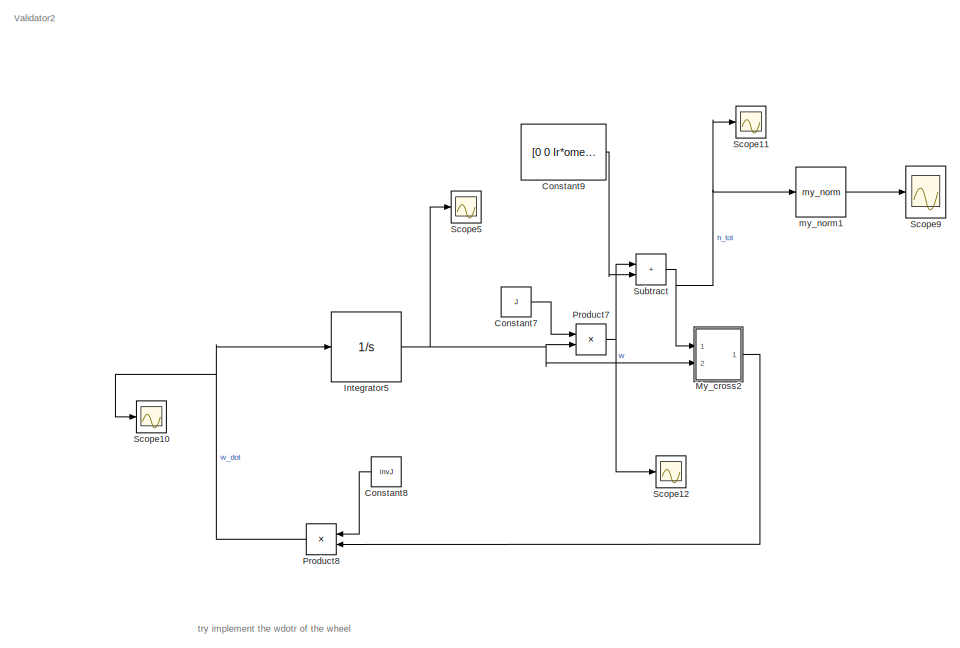
[diagram: root canvas - part 1/5, top right region]
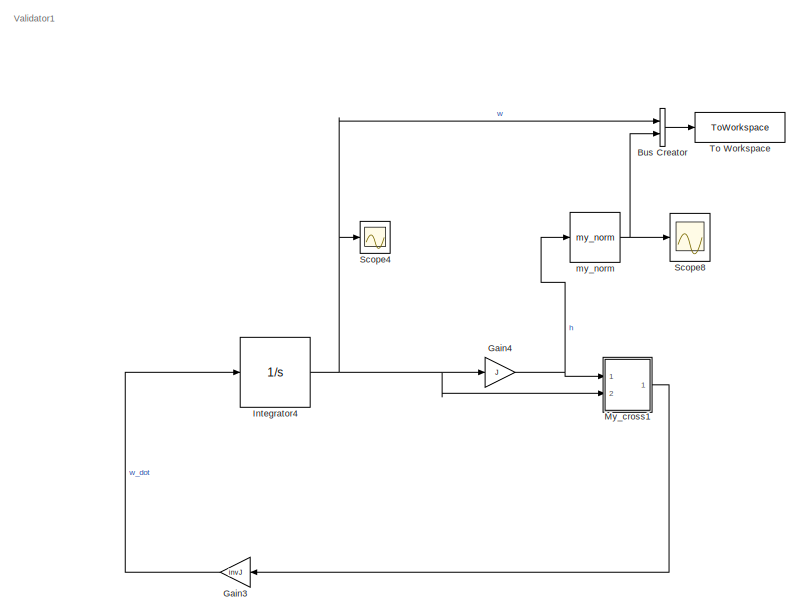
[diagram: root canvas - part 2/5, top center region]
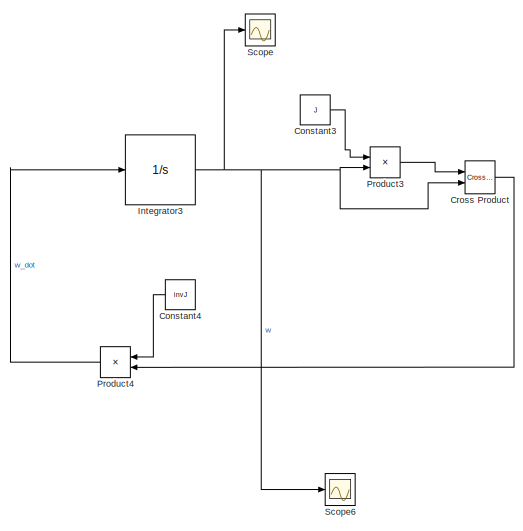
[diagram: root canvas - part 3/5, top left region]
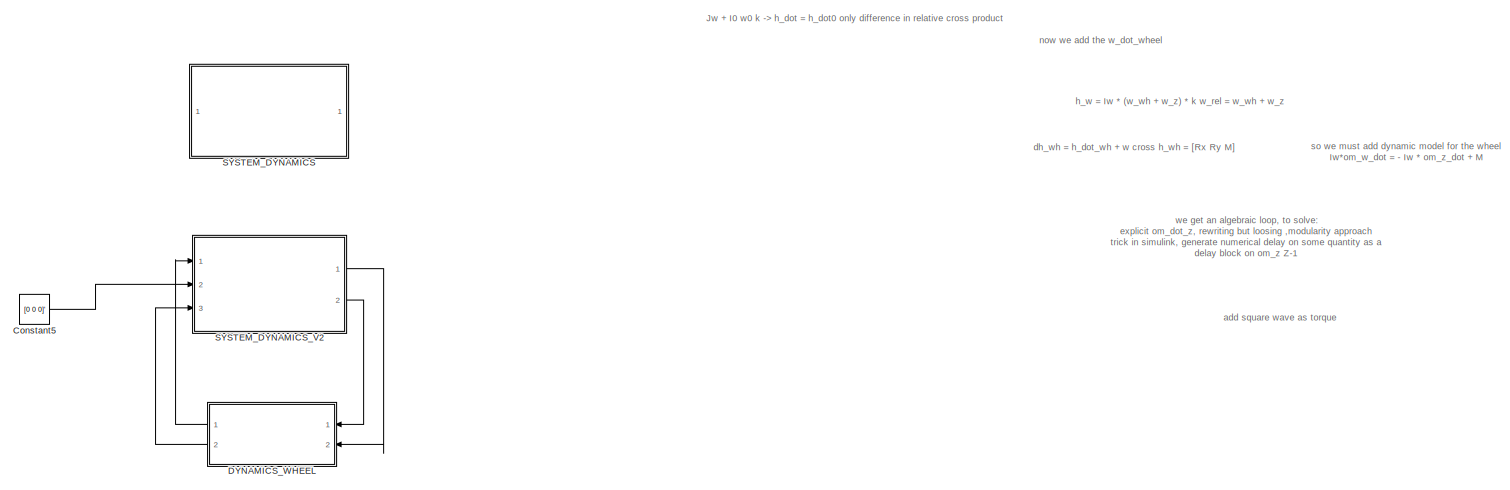
[diagram: root canvas - part 4/5, middle right region]
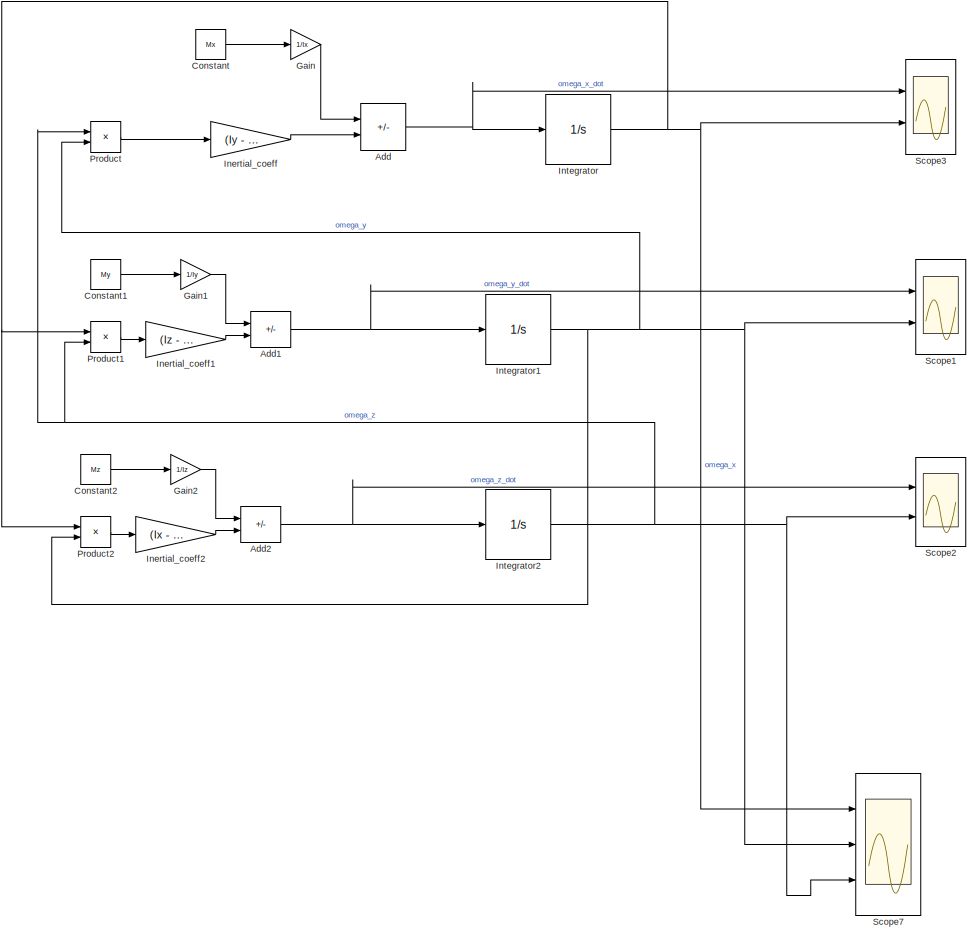
[diagram: root canvas - part 5/5, bottom left region]
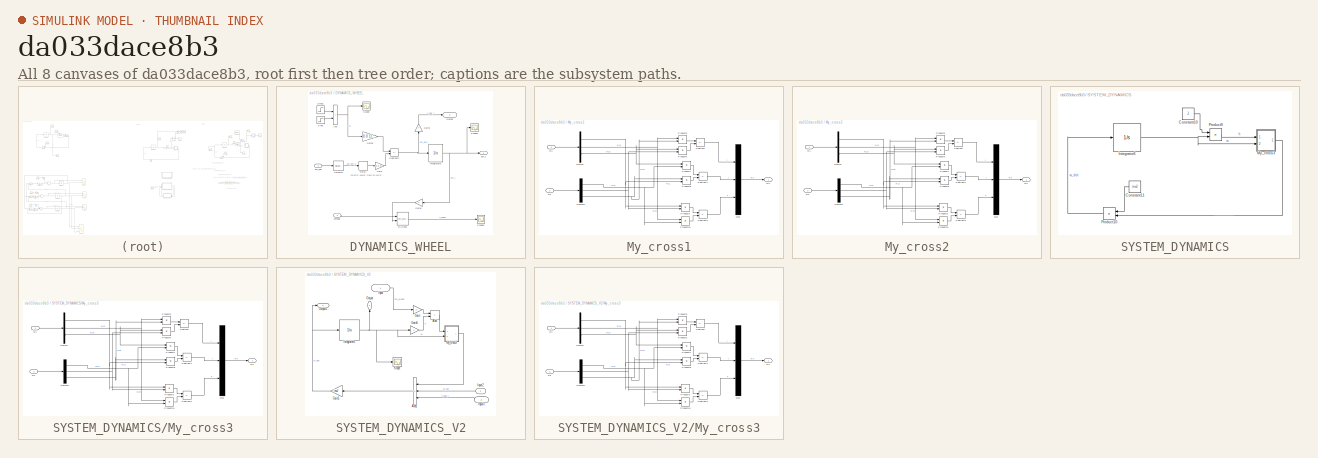
[diagram: thumbnail index - all 8 canvases of the model, root first then tree order]
MODEL slx_da033dace8b3
KIND model
CONFIG AbsTol = auto
CONFIG EnableMultiTasking = off
CONFIG FixedStep = 0.01
CONFIG MaxStep = auto
CONFIG MinStep = auto
CONFIG RelTol = 1e-3
CONFIG SampleTimeConstraint = Unconstrained
CONFIG SolverName = ode8
CONFIG StartTime = 0.0
CONFIG StopTime = 5000
BLOCK [Sum] Add
  Commented = on
  IconShape = rectangular
  Inputs = --
  Ports = [2, 1]
BLOCK [Sum] Add1
  Commented = on
  IconShape = rectangular
  Inputs = --
  Ports = [2, 1]
BLOCK [Sum] Add2
  Commented = on
  IconShape = rectangular
  Inputs = --
  Ports = [2, 1]
BLOCK [BusCreator] Bus Creator
  DisplayOption = bar
  InheritFromInputs = on
  Inputs = 2
  Ports = [2, 1]
BLOCK [Constant] Constant
  Commented = on
  Value = Mx
BLOCK [Constant] Constant1
  Commented = on
  Value = My
BLOCK [Constant] Constant2
  Commented = on
  Value = Mz
BLOCK [Constant] Constant3
  Commented = on
  Value = J
BLOCK [Constant] Constant4
  Commented = on
  Value = invJ
BLOCK [Constant] Constant5
  Value = [0 0 0]'
BLOCK [Constant] Constant7
  Value = J
BLOCK [Constant] Constant8
  Value = invJ
BLOCK [Constant] Constant9
  Value = [0 0 Ir*omegar]'
BLOCK [Reference] Cross Product  REF=vrlib/Utilities/Cross Product
  Commented = on
  Ports = [2, 1]
  SourceBlock = vrlib/Utilities/Cross Product
  SourceProductBaseCode = SL
  SourceType = Cross Product
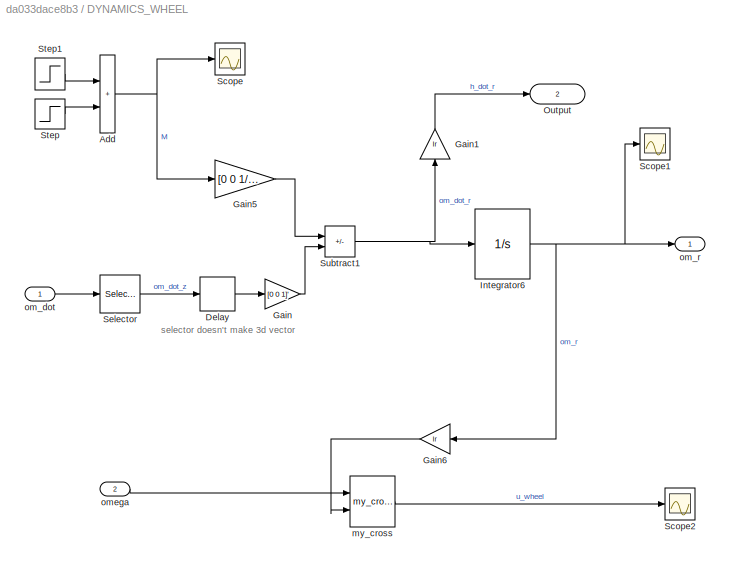
BLOCK [SubSystem] DYNAMICS_WHEEL
  Ports = [2, 2]
  RequestExecContextInheritance = off
BLOCK [Sum] DYNAMICS_WHEEL/Add
  IconShape = rectangular
  Ports = [2, 1]
BLOCK [Delay] DYNAMICS_WHEEL/Delay
  DelayLength = 1
  InputPortMap = u0
  Ports = [1, 1]
BLOCK [Gain] DYNAMICS_WHEEL/Gain
  Gain = [0 0 1]'
BLOCK [Gain] DYNAMICS_WHEEL/Gain1
  Gain = Ir
  NameLocation = right
BLOCK [Gain] DYNAMICS_WHEEL/Gain5
  Gain = [0 0 1/Ir]'
BLOCK [Gain] DYNAMICS_WHEEL/Gain6
  Gain = Ir
BLOCK [Integrator] DYNAMICS_WHEEL/Integrator6
  InitialCondition = [0 0 0]'
  Ports = [1, 1]
BLOCK [Outport] DYNAMICS_WHEEL/Output
  IconDisplay = Signal name
  Port = 2
BLOCK [Scope] DYNAMICS_WHEEL/Scope
  Floating = off
  NumInputPorts = 1
  Ports = [1]
  ScopeSpecificationString = Simulink.scopes.TimeScopeBlockCfg('CurrentConfiguration', extmgr.ConfigurationSet(extmgr.Configuration('Core','General UI',true),extmgr.Configuration('Core','Source UI',true),extmgr.Configuration('Sources','WiredSimulink',true,'DataLoggingVariableName','ScopeData2'),extmgr.Configuration('Visuals','Time Domain',true,'SerializedDisplays',{struct('MinYLimReal','-0.00005','MaxYLimReal','0.00045','YLab...<+1388ch>
BLOCK [Scope] DYNAMICS_WHEEL/Scope1
  Floating = off
  NumInputPorts = 1
  Ports = [1]
  ScopeSpecificationString = Simulink.scopes.TimeScopeBlockCfg('CurrentConfiguration', extmgr.ConfigurationSet(extmgr.Configuration('Core','General UI',true),extmgr.Configuration('Core','Source UI',true),extmgr.Configuration('Sources','WiredSimulink',true,'DataLoggingVariableName','ScopeData3'),extmgr.Configuration('Visuals','Time Domain',true,'SerializedDisplays',{struct('MinYLimReal','-0.05551','MaxYLimReal','0.49956','YLab...<+1451ch>
BLOCK [Scope] DYNAMICS_WHEEL/Scope2
  Floating = off
  NumInputPorts = 1
  Ports = [1]
  ScopeSpecificationString = Simulink.scopes.TimeScopeBlockCfg('CurrentConfiguration', extmgr.ConfigurationSet(extmgr.Configuration('Core','General UI',true),extmgr.Configuration('Core','Source UI',true),extmgr.Configuration('Sources','WiredSimulink',true,'DataLoggingVariableName','ScopeData1'),extmgr.Configuration('Visuals','Time Domain',true,'SerializedDisplays',{struct('MinYLimReal','-0.0000004','MaxYLimReal','0.0000004','...<+1479ch>
BLOCK [Selector] DYNAMICS_WHEEL/Selector
  IndexOptions = Index vector (dialog)
  Indices = 3
  InputPortWidth = 3
  OutputSizes = 1
  Ports = [1, 1]
BLOCK [Step] DYNAMICS_WHEEL/Step
  After = -T_w
  SampleTime = 0
  Time = 255
BLOCK [Step] DYNAMICS_WHEEL/Step1
  After = T_w
  SampleTime = 0
  Time = 250
BLOCK [Sum] DYNAMICS_WHEEL/Subtract1
  IconShape = rectangular
  Inputs = +-
  Ports = [2, 1]
BLOCK [Reference] DYNAMICS_WHEEL/my_cross  REF=my_math_ops/my_cross  (lib defined in slx_67cfba16120e)
  Ports = [2, 1]
  SourceBlock = my_math_ops/my_cross
  SourceType = SubSystem
BLOCK [Inport] DYNAMICS_WHEEL/om_dot
BLOCK [Outport] DYNAMICS_WHEEL/om_r
BLOCK [Inport] DYNAMICS_WHEEL/omega
  Port = 2
BLOCK [Gain] Gain
  Commented = on
  Gain = 1/Ix
BLOCK [Gain] Gain1
  Commented = on
  Gain = 1/Iy
BLOCK [Gain] Gain2
  Commented = on
  Gain = 1/Iz
BLOCK [Gain] Gain3
  Gain = invJ
  Multiplication = Matrix(K*u)
BLOCK [Gain] Gain4
  Gain = J
  Multiplication = Matrix(K*u)
BLOCK [Gain] Inertial_coeff
  Commented = on
  Gain = (Iy - Iz) / Ix
BLOCK [Gain] Inertial_coeff1
  Commented = on
  Gain = (Iz - Ix) / Iy
BLOCK [Gain] Inertial_coeff2
  Commented = on
  Gain = (Ix - Iy) / Iz
BLOCK [Integrator] Integrator
  Commented = on
  InitialCondition = omegax0
  Ports = [1, 1]
BLOCK [Integrator] Integrator1
  Commented = on
  InitialCondition = omegay0
  Ports = [1, 1]
BLOCK [Integrator] Integrator2
  Commented = on
  InitialCondition = omegaz0
  Ports = [1, 1]
BLOCK [Integrator] Integrator3
  Commented = on
  InitialCondition = omega0
  Ports = [1, 1]
BLOCK [Integrator] Integrator4
  InitialCondition = omega0
  Ports = [1, 1]
BLOCK [Integrator] Integrator5
  InitialCondition = omega0
  Ports = [1, 1]
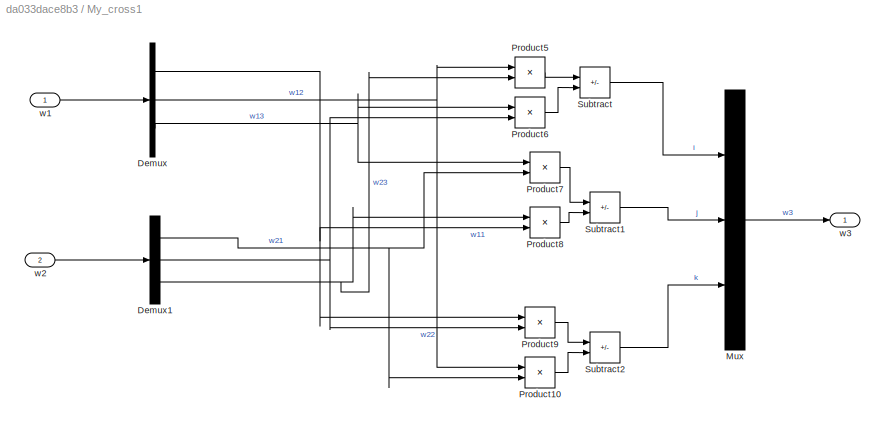
BLOCK [SubSystem] My_cross1
  Ports = [2, 1]
  RequestExecContextInheritance = off
BLOCK [Demux] My_cross1/Demux
  Outputs = 3
  Ports = [1, 3]
BLOCK [Demux] My_cross1/Demux1
  Outputs = 3
  Ports = [1, 3]
BLOCK [Mux] My_cross1/Mux
  DisplayOption = bar
  Inputs = 3
  Ports = [3, 1]
BLOCK [Product] My_cross1/Product10
  Ports = [2, 1]
BLOCK [Product] My_cross1/Product5
  Ports = [2, 1]
BLOCK [Product] My_cross1/Product6
  Ports = [2, 1]
BLOCK [Product] My_cross1/Product7
  Ports = [2, 1]
BLOCK [Product] My_cross1/Product8
  Ports = [2, 1]
BLOCK [Product] My_cross1/Product9
  Ports = [2, 1]
BLOCK [Sum] My_cross1/Subtract
  IconShape = rectangular
  Inputs = +-
  Ports = [2, 1]
BLOCK [Sum] My_cross1/Subtract1
  IconShape = rectangular
  Inputs = +-
  Ports = [2, 1]
BLOCK [Sum] My_cross1/Subtract2
  IconShape = rectangular
  Inputs = +-
  Ports = [2, 1]
BLOCK [Inport] My_cross1/w1
BLOCK [Inport] My_cross1/w2
  Port = 2
BLOCK [Outport] My_cross1/w3
BLOCK [SubSystem] My_cross2
  Ports = [2, 1]
  RequestExecContextInheritance = off
BLOCK [Demux] My_cross2/Demux
  Outputs = 3
  Ports = [1, 3]
BLOCK [Demux] My_cross2/Demux1
  Outputs = 3
  Ports = [1, 3]
BLOCK [Mux] My_cross2/Mux
  DisplayOption = bar
  Inputs = 3
  Ports = [3, 1]
BLOCK [Product] My_cross2/Product10
  Ports = [2, 1]
BLOCK [Product] My_cross2/Product5
  Ports = [2, 1]
BLOCK [Product] My_cross2/Product6
  Ports = [2, 1]
BLOCK [Product] My_cross2/Product7
  Ports = [2, 1]
BLOCK [Product] My_cross2/Product8
  Ports = [2, 1]
BLOCK [Product] My_cross2/Product9
  Ports = [2, 1]
BLOCK [Sum] My_cross2/Subtract
  IconShape = rectangular
  Inputs = +-
  Ports = [2, 1]
BLOCK [Sum] My_cross2/Subtract1
  IconShape = rectangular
  Inputs = +-
  Ports = [2, 1]
BLOCK [Sum] My_cross2/Subtract2
  IconShape = rectangular
  Inputs = +-
  Ports = [2, 1]
BLOCK [Inport] My_cross2/w1
BLOCK [Inport] My_cross2/w2
  Port = 2
BLOCK [Outport] My_cross2/w3
BLOCK [Product] Product
  Commented = on
  Ports = [2, 1]
BLOCK [Product] Product1
  Commented = on
  Ports = [2, 1]
BLOCK [Product] Product2
  Commented = on
  Ports = [2, 1]
BLOCK [Product] Product3
  Commented = on
  Multiplication = Matrix(*)
  Ports = [2, 1]
BLOCK [Product] Product4
  Commented = on
  Multiplication = Matrix(*)
  Ports = [2, 1]
BLOCK [Product] Product7
  Multiplication = Matrix(*)
  Ports = [2, 1]
BLOCK [Product] Product8
  Multiplication = Matrix(*)
  Ports = [2, 1]
BLOCK [SubSystem] SYSTEM_DYNAMICS
  Ports = []
  RequestExecContextInheritance = off
BLOCK [Constant] SYSTEM_DYNAMICS/Constant10
  Value = J
BLOCK [Constant] SYSTEM_DYNAMICS/Constant11
  Value = invJ
BLOCK [Integrator] SYSTEM_DYNAMICS/Integrator6
  InitialCondition = omega0
  Ports = [1, 1]
BLOCK [SubSystem] SYSTEM_DYNAMICS/My_cross3
  Ports = [2, 1]
  RequestExecContextInheritance = off
BLOCK [Demux] SYSTEM_DYNAMICS/My_cross3/Demux
  Outputs = 3
  Ports = [1, 3]
BLOCK [Demux] SYSTEM_DYNAMICS/My_cross3/Demux1
  Outputs = 3
  Ports = [1, 3]
BLOCK [Mux] SYSTEM_DYNAMICS/My_cross3/Mux
  DisplayOption = bar
  Inputs = 3
  Ports = [3, 1]
BLOCK [Product] SYSTEM_DYNAMICS/My_cross3/Product10
  Ports = [2, 1]
BLOCK [Product] SYSTEM_DYNAMICS/My_cross3/Product5
  Ports = [2, 1]
BLOCK [Product] SYSTEM_DYNAMICS/My_cross3/Product6
  Ports = [2, 1]
BLOCK [Product] SYSTEM_DYNAMICS/My_cross3/Product7
  Ports = [2, 1]
BLOCK [Product] SYSTEM_DYNAMICS/My_cross3/Product8
  Ports = [2, 1]
BLOCK [Product] SYSTEM_DYNAMICS/My_cross3/Product9
  Ports = [2, 1]
BLOCK [Sum] SYSTEM_DYNAMICS/My_cross3/Subtract
  IconShape = rectangular
  Inputs = +-
  Ports = [2, 1]
BLOCK [Sum] SYSTEM_DYNAMICS/My_cross3/Subtract1
  IconShape = rectangular
  Inputs = +-
  Ports = [2, 1]
BLOCK [Sum] SYSTEM_DYNAMICS/My_cross3/Subtract2
  IconShape = rectangular
  Inputs = +-
  Ports = [2, 1]
BLOCK [Inport] SYSTEM_DYNAMICS/My_cross3/w1
BLOCK [Inport] SYSTEM_DYNAMICS/My_cross3/w2
  Port = 2
BLOCK [Outport] SYSTEM_DYNAMICS/My_cross3/w3
BLOCK [Product] SYSTEM_DYNAMICS/Product10
  Multiplication = Matrix(*)
  Ports = [2, 1]
BLOCK [Product] SYSTEM_DYNAMICS/Product9
  Multiplication = Matrix(*)
  Ports = [2, 1]
BLOCK [SubSystem] SYSTEM_DYNAMICS_V2
  Ports = [3, 2]
  RequestExecContextInheritance = off
BLOCK [Sum] SYSTEM_DYNAMICS_V2/Add
  IconShape = rectangular
  Ports = [2, 1]
BLOCK [Sum] SYSTEM_DYNAMICS_V2/Add1
  IconShape = rectangular
  Inputs = ++-
  Ports = [3, 1]
BLOCK [Gain] SYSTEM_DYNAMICS_V2/Gain
  Gain = Ir
BLOCK [Gain] SYSTEM_DYNAMICS_V2/Gain5
  Gain = invJ
  Multiplication = Matrix(K*u)
BLOCK [Gain] SYSTEM_DYNAMICS_V2/Gain6
  Gain = J
  Multiplication = Matrix(K*u)
BLOCK [Inport] SYSTEM_DYNAMICS_V2/Input
  IconDisplay = Signal name
BLOCK [Inport] SYSTEM_DYNAMICS_V2/Input2
  IconDisplay = Signal name
  Port = 2
BLOCK [Inport] SYSTEM_DYNAMICS_V2/Input3
  IconDisplay = Signal name
  Port = 3
BLOCK [Integrator] SYSTEM_DYNAMICS_V2/Integrator6
  InitialCondition = omega0
  Ports = [1, 1]
BLOCK [SubSystem] SYSTEM_DYNAMICS_V2/My_cross3
  Ports = [2, 1]
  RequestExecContextInheritance = off
BLOCK [Demux] SYSTEM_DYNAMICS_V2/My_cross3/Demux
  Outputs = 3
  Ports = [1, 3]
BLOCK [Demux] SYSTEM_DYNAMICS_V2/My_cross3/Demux1
  Outputs = 3
  Ports = [1, 3]
BLOCK [Mux] SYSTEM_DYNAMICS_V2/My_cross3/Mux
  DisplayOption = bar
  Inputs = 3
  Ports = [3, 1]
BLOCK [Product] SYSTEM_DYNAMICS_V2/My_cross3/Product10
  Ports = [2, 1]
BLOCK [Product] SYSTEM_DYNAMICS_V2/My_cross3/Product5
  Ports = [2, 1]
BLOCK [Product] SYSTEM_DYNAMICS_V2/My_cross3/Product6
  Ports = [2, 1]
BLOCK [Product] SYSTEM_DYNAMICS_V2/My_cross3/Product7
  Ports = [2, 1]
BLOCK [Product] SYSTEM_DYNAMICS_V2/My_cross3/Product8
  Ports = [2, 1]
BLOCK [Product] SYSTEM_DYNAMICS_V2/My_cross3/Product9
  Ports = [2, 1]
BLOCK [Sum] SYSTEM_DYNAMICS_V2/My_cross3/Subtract
  IconShape = rectangular
  Inputs = +-
  Ports = [2, 1]
BLOCK [Sum] SYSTEM_DYNAMICS_V2/My_cross3/Subtract1
  IconShape = rectangular
  Inputs = +-
  Ports = [2, 1]
BLOCK [Sum] SYSTEM_DYNAMICS_V2/My_cross3/Subtract2
  IconShape = rectangular
  Inputs = +-
  Ports = [2, 1]
BLOCK [Inport] SYSTEM_DYNAMICS_V2/My_cross3/w1
BLOCK [Inport] SYSTEM_DYNAMICS_V2/My_cross3/w2
  Port = 2
BLOCK [Outport] SYSTEM_DYNAMICS_V2/My_cross3/w3
BLOCK [Outport] SYSTEM_DYNAMICS_V2/Output
  IconDisplay = Signal name
  NameLocation = right
BLOCK [Outport] SYSTEM_DYNAMICS_V2/Output1
  IconDisplay = Signal name
  Port = 2
BLOCK [Scope] SYSTEM_DYNAMICS_V2/Scope
  Floating = off
  NumInputPorts = 1
  Ports = [1]
  ScopeSpecificationString = Simulink.scopes.TimeScopeBlockCfg('CurrentConfiguration', extmgr.ConfigurationSet(extmgr.Configuration('Core','General UI',true),extmgr.Configuration('Core','Source UI',true),extmgr.Configuration('Sources','WiredSimulink',true,'DataLoggingVariableName','ScopeData1'),extmgr.Configuration('Visuals','Time Domain',true,'SerializedDisplays',{struct('MinYLimReal','-0.02956','MaxYLimReal','0.02551','YLab...<+1467ch>
BLOCK [Scope] Scope
  Commented = on
  Floating = off
  NumInputPorts = 1
  Ports = [1]
  ScopeSpecificationString = Simulink.scopes.TimeScopeBlockCfg('CurrentConfiguration', extmgr.ConfigurationSet(extmgr.Configuration('Core','General UI',true),extmgr.Configuration('Core','Source UI',true),extmgr.Configuration('Sources','WiredSimulink',true,'DataLoggingVariableName','ScopeData1'),extmgr.Configuration('Visuals','Time Domain',true,'SerializedDisplays',{struct('MinYLimReal','-5.07987','MaxYLimReal','5.07987','YLab...<+1401ch>
BLOCK [Scope] Scope1
  Commented = on
  Floating = off
  NumInputPorts = 2
  Ports = [2]
  ScopeSpecificationString = Simulink.scopes.TimeScopeBlockCfg('CurrentConfiguration', extmgr.ConfigurationSet(extmgr.Configuration('Core','General UI',true),extmgr.Configuration('Core','Source UI',true),extmgr.Configuration('Sources','WiredSimulink',true,'DataLoggingVariableName','ScopeData1'),extmgr.Configuration('Visuals','Time Domain',true,'SerializedDisplays',{struct('MinYLimReal','-23.79143','MaxYLimReal','23.79143','YL...<+1413ch>
BLOCK [Scope] Scope10
  Floating = off
  NumInputPorts = 1
  Ports = [1]
  ScopeSpecificationString = Simulink.scopes.TimeScopeBlockCfg('CurrentConfiguration', extmgr.ConfigurationSet(extmgr.Configuration('Core','General UI',true),extmgr.Configuration('Core','Source UI',true),extmgr.Configuration('Sources','WiredSimulink',true,'DataLoggingVariableName','ScopeData1'),extmgr.Configuration('Visuals','Time Domain',true,'SerializedDisplays',{struct('MinYLimReal','-24.20721','MaxYLimReal','24.20721','YL...<+1417ch>
BLOCK [Scope] Scope11
  Floating = off
  NumInputPorts = 1
  Ports = [1]
  ScopeSpecificationString = Simulink.scopes.TimeScopeBlockCfg('CurrentConfiguration', extmgr.ConfigurationSet(extmgr.Configuration('Core','General UI',true),extmgr.Configuration('Core','Source UI',true),extmgr.Configuration('Sources','WiredSimulink',true,'DataLoggingVariableName','ScopeData1'),extmgr.Configuration('Visuals','Time Domain',true,'SerializedDisplays',{struct('MinYLimReal','-0.00405','MaxYLimReal','0.03648','YLab...<+1481ch>
BLOCK [Scope] Scope12
  Floating = off
  NumInputPorts = 1
  Ports = [1]
  ScopeSpecificationString = Simulink.scopes.TimeScopeBlockCfg('CurrentConfiguration', extmgr.ConfigurationSet(extmgr.Configuration('Core','General UI',true),extmgr.Configuration('Core','Source UI',true),extmgr.Configuration('Sources','WiredSimulink',true,'DataLoggingVariableName','ScopeData2'),extmgr.Configuration('Visuals','Time Domain',true,'SerializedDisplays',{struct('MinYLimReal','-0.00013','MaxYLimReal','0.00113','YLab...<+1420ch>
BLOCK [Scope] Scope2
  Commented = on
  Floating = off
  NumInputPorts = 2
  Ports = [2]
  ScopeSpecificationString = Simulink.scopes.TimeScopeBlockCfg('CurrentConfiguration', extmgr.ConfigurationSet(extmgr.Configuration('Core','General UI',true),extmgr.Configuration('Core','Source UI',true),extmgr.Configuration('Sources','WiredSimulink',true,'DataLoggingVariableName','ScopeData2'),extmgr.Configuration('Visuals','Time Domain',true,'SerializedDisplays',{struct('MinYLimReal','-24.20722','MaxYLimReal','24.20722','YL...<+1384ch>
BLOCK [Scope] Scope3
  Commented = on
  Floating = off
  NumInputPorts = 2
  Ports = [2]
  ScopeSpecificationString = Simulink.scopes.TimeScopeBlockCfg('CurrentConfiguration', extmgr.ConfigurationSet(extmgr.Configuration('Core','General UI',true),extmgr.Configuration('Core','Source UI',true),extmgr.Configuration('Sources','WiredSimulink',true,'DataLoggingVariableName','ScopeData1'),extmgr.Configuration('Visuals','Time Domain',true,'SerializedDisplays',{struct('MinYLimReal','-4.96364','MaxYLimReal','4.73247','YLab...<+1407ch>
BLOCK [Scope] Scope4
  Floating = off
  NumInputPorts = 1
  Ports = [1]
  ScopeSpecificationString = Simulink.scopes.TimeScopeBlockCfg('CurrentConfiguration', extmgr.ConfigurationSet(extmgr.Configuration('Core','General UI',true,'FigureColor',[0 0 0]),extmgr.Configuration('Core','Source UI',true),extmgr.Configuration('Sources','WiredSimulink',true,'DataLoggingVariableName','ScopeData2'),extmgr.Configuration('Visuals','Time Domain',true,'SerializedDisplays',{struct('MinYLimReal','-0.0025','MaxYLim...<+1546ch>
BLOCK [Scope] Scope5
  Floating = off
  NumInputPorts = 1
  Ports = [1]
  ScopeSpecificationString = Simulink.scopes.TimeScopeBlockCfg('CurrentConfiguration', extmgr.ConfigurationSet(extmgr.Configuration('Core','General UI',true),extmgr.Configuration('Core','Source UI',true),extmgr.Configuration('Sources','WiredSimulink',true,'DataLoggingVariableName','ScopeData3'),extmgr.Configuration('Visuals','Time Domain',true,'SerializedDisplays',{struct('MinYLimReal','-0.0025','MaxYLimReal','0.0225','YLabel...<+1393ch>
BLOCK [Scope] Scope6
  Commented = on
  Floating = off
  NumInputPorts = 1
  Ports = [1]
  ScopeSpecificationString = Simulink.scopes.TimeScopeBlockCfg('CurrentConfiguration', extmgr.ConfigurationSet(extmgr.Configuration('Core','General UI',true),extmgr.Configuration('Core','Source UI',true),extmgr.Configuration('Sources','WiredSimulink',true,'DataLoggingVariableName','ScopeData4'),extmgr.Configuration('Visuals','Time Domain',true,'SerializedDisplays',{struct('MinYLimReal','-5.07987','MaxYLimReal','5.07987','YLab...<+1403ch>
BLOCK [Scope] Scope7
  Commented = on
  Floating = off
  NumInputPorts = 3
  Ports = [3]
  ScopeSpecificationString = Simulink.scopes.TimeScopeBlockCfg('CurrentConfiguration', extmgr.ConfigurationSet(extmgr.Configuration('Core','General UI',true),extmgr.Configuration('Core','Source UI',true),extmgr.Configuration('Sources','WiredSimulink',true,'DataLoggingVariableName','ScopeData1'),extmgr.Configuration('Visuals','Time Domain',true,'SerializedDisplays',{struct('MinYLimReal','-5.07987','MaxYLimReal','5.07987','YLab...<+1415ch>
BLOCK [Scope] Scope8
  Floating = off
  NumInputPorts = 1
  Ports = [1]
  ScopeSpecificationString = Simulink.scopes.TimeScopeBlockCfg('CurrentConfiguration', extmgr.ConfigurationSet(extmgr.Configuration('Core','General UI',true),extmgr.Configuration('Core','Source UI',true),extmgr.Configuration('Sources','WiredSimulink',true,'DataLoggingVariableName','ScopeData2'),extmgr.Configuration('Visuals','Time Domain',true,'SerializedDisplays',{struct('MinYLimReal','0.001008000002489467','MaxYLimReal','0....<+1492ch>
BLOCK [Scope] Scope9
  Floating = off
  NumInputPorts = 1
  Ports = [1]
  ScopeSpecificationString = Simulink.scopes.TimeScopeBlockCfg('CurrentConfiguration', extmgr.ConfigurationSet(extmgr.Configuration('Core','General UI',true),extmgr.Configuration('Core','Source UI',true),extmgr.Configuration('Sources','WiredSimulink',true,'DataLoggingVariableName','ScopeData3'),extmgr.Configuration('Visuals','Time Domain',true,'SerializedDisplays',{struct('MinYLimReal','0.02242','MaxYLimReal','0.04242','YLabe...<+1394ch>
BLOCK [Sum] Subtract
  IconShape = rectangular
  Ports = [2, 1]
BLOCK [ToWorkspace] To Workspace
  FixptAsFi = on
  MaxDataPoints = inf
  Ports = [1]
  SampleTime = -1
  VariableName = simout
BLOCK [Reference] my_norm  REF=my_math_ops/my_norm  (lib defined in slx_67cfba16120e)
  Ports = [1, 1]
  SourceBlock = my_math_ops/my_norm
  SourceType = SubSystem
BLOCK [Reference] my_norm1  REF=my_math_ops/my_norm  (lib defined in slx_67cfba16120e)
  Ports = [1, 1]
  SourceBlock = my_math_ops/my_norm
  SourceType = SubSystem
ANNOTATION (root): we get an algebraic loop, to solve: explicit om_dot_z, rewriting but loosing ,modularity approach trick in simulink, generate numerical delay on some quantity as a delay block on om_z Z-1
ANNOTATION (root): dh_wh = h_dot_wh + w cross h_wh = [ Rx Ry M]
ANNOTATION (root): Jw + I0 w0 k -> h_dot = h_dot0 only difference in relative cross product
ANNOTATION (root): Validator1
ANNOTATION (root): Validator2
ANNOTATION (root): add square wave as torque
ANNOTATION (root): h_w = Iw * (w_wh + w_z) * k w_rel = w_wh + w_z
ANNOTATION (root): now we add the w_dot_wheel
ANNOTATION (root): so we must add dynamic model for the wheel Iw*om_w_dot = - Iw * om_z_dot + M
ANNOTATION (root): try implement the wdotr of the wheel
ANNOTATION DYNAMICS_WHEEL: selector doesn't make 3d vector
NET Add1:1 -> Integrator1:1, Scope1:1
NET Add2:1 -> Integrator2:1, Scope2:1
NET Add:1 -> Integrator:1, Scope3:1
LINE Bus Creator:1 -> To Workspace:1
LINE Constant1:1 -> Gain1:1
LINE Constant2:1 -> Gain2:1
LINE Constant3:1 -> Product3:1
LINE Constant4:1 -> Product4:1
LINE Constant5:1 -> SYSTEM_DYNAMICS_V2:2
LINE Constant7:1 -> Product7:1
LINE Constant8:1 -> Product8:1
LINE Constant9:1 -> Subtract:2
LINE Constant:1 -> Gain:1
LINE Cross Product:1 -> Product4:2
NET DYNAMICS_WHEEL/Add:1 -> DYNAMICS_WHEEL/Gain5:1, DYNAMICS_WHEEL/Scope:1
LINE DYNAMICS_WHEEL/Delay:1 -> DYNAMICS_WHEEL/Gain:1
LINE DYNAMICS_WHEEL/Gain1:1 -> DYNAMICS_WHEEL/Output:1
LINE DYNAMICS_WHEEL/Gain5:1 -> DYNAMICS_WHEEL/Subtract1:1
LINE DYNAMICS_WHEEL/Gain6:1 -> DYNAMICS_WHEEL/my_cross:2
LINE DYNAMICS_WHEEL/Gain:1 -> DYNAMICS_WHEEL/Subtract1:2
NET DYNAMICS_WHEEL/Integrator6:1 -> DYNAMICS_WHEEL/Gain6:1, DYNAMICS_WHEEL/Scope1:1, DYNAMICS_WHEEL/om_r:1
LINE DYNAMICS_WHEEL/Selector:1 -> DYNAMICS_WHEEL/Delay:1
LINE DYNAMICS_WHEEL/Step1:1 -> DYNAMICS_WHEEL/Add:1
LINE DYNAMICS_WHEEL/Step:1 -> DYNAMICS_WHEEL/Add:2
NET DYNAMICS_WHEEL/Subtract1:1 -> DYNAMICS_WHEEL/Gain1:1, DYNAMICS_WHEEL/Integrator6:1
LINE DYNAMICS_WHEEL/my_cross:1 -> DYNAMICS_WHEEL/Scope2:1
LINE DYNAMICS_WHEEL/om_dot:1 -> DYNAMICS_WHEEL/Selector:1
LINE DYNAMICS_WHEEL/omega:1 -> DYNAMICS_WHEEL/my_cross:1
LINE DYNAMICS_WHEEL:1 -> SYSTEM_DYNAMICS_V2:1
LINE DYNAMICS_WHEEL:2 -> SYSTEM_DYNAMICS_V2:3
LINE Gain1:1 -> Add1:1
LINE Gain2:1 -> Add2:1
LINE Gain3:1 -> Integrator4:1
NET Gain4:1 -> My_cross1:1, my_norm:1
LINE Gain:1 -> Add:1
LINE Inertial_coeff1:1 -> Add1:2
LINE Inertial_coeff2:1 -> Add2:2
LINE Inertial_coeff:1 -> Add:2
NET Integrator1:1 -> Product2:2, Product:2, Scope1:2, Scope7:2
NET Integrator2:1 -> Product1:2, Product:1, Scope2:2, Scope7:3
NET Integrator3:1 -> Cross Product:2, Product3:2, Scope6:1, Scope:1
NET Integrator4:1 -> Bus Creator:1, Gain4:1, My_cross1:2, Scope4:1
NET Integrator5:1 -> My_cross2:2, Product7:2, Scope5:1
NET Integrator:1 -> Product1:1, Product2:1, Scope3:2, Scope7:1
NET My_cross1/Demux1:1 -> My_cross1/Product10:2, My_cross1/Product7:2
NET My_cross1/Demux1:2 -> My_cross1/Product6:2, My_cross1/Product9:2
NET My_cross1/Demux1:3 -> My_cross1/Product5:2, My_cross1/Product8:1
NET My_cross1/Demux:1 -> My_cross1/Product8:2, My_cross1/Product9:1
NET My_cross1/Demux:2 -> My_cross1/Product10:1, My_cross1/Product5:1
NET My_cross1/Demux:3 -> My_cross1/Product6:1, My_cross1/Product7:1
LINE My_cross1/Mux:1 -> My_cross1/w3:1
LINE My_cross1/Product10:1 -> My_cross1/Subtract2:2
LINE My_cross1/Product5:1 -> My_cross1/Subtract:1
LINE My_cross1/Product6:1 -> My_cross1/Subtract:2
LINE My_cross1/Product7:1 -> My_cross1/Subtract1:1
LINE My_cross1/Product8:1 -> My_cross1/Subtract1:2
LINE My_cross1/Product9:1 -> My_cross1/Subtract2:1
LINE My_cross1/Subtract1:1 -> My_cross1/Mux:2
LINE My_cross1/Subtract2:1 -> My_cross1/Mux:3
LINE My_cross1/Subtract:1 -> My_cross1/Mux:1
LINE My_cross1/w1:1 -> My_cross1/Demux:1
LINE My_cross1/w2:1 -> My_cross1/Demux1:1
LINE My_cross1:1 -> Gain3:1
NET My_cross2/Demux1:1 -> My_cross2/Product10:2, My_cross2/Product7:2
NET My_cross2/Demux1:2 -> My_cross2/Product6:2, My_cross2/Product9:2
NET My_cross2/Demux1:3 -> My_cross2/Product5:2, My_cross2/Product8:1
NET My_cross2/Demux:1 -> My_cross2/Product8:2, My_cross2/Product9:1
NET My_cross2/Demux:2 -> My_cross2/Product10:1, My_cross2/Product5:1
NET My_cross2/Demux:3 -> My_cross2/Product6:1, My_cross2/Product7:1
LINE My_cross2/Mux:1 -> My_cross2/w3:1
LINE My_cross2/Product10:1 -> My_cross2/Subtract2:2
LINE My_cross2/Product5:1 -> My_cross2/Subtract:1
LINE My_cross2/Product6:1 -> My_cross2/Subtract:2
LINE My_cross2/Product7:1 -> My_cross2/Subtract1:1
LINE My_cross2/Product8:1 -> My_cross2/Subtract1:2
LINE My_cross2/Product9:1 -> My_cross2/Subtract2:1
LINE My_cross2/Subtract1:1 -> My_cross2/Mux:2
LINE My_cross2/Subtract2:1 -> My_cross2/Mux:3
LINE My_cross2/Subtract:1 -> My_cross2/Mux:1
LINE My_cross2/w1:1 -> My_cross2/Demux:1
LINE My_cross2/w2:1 -> My_cross2/Demux1:1
LINE My_cross2:1 -> Product8:2
LINE Product1:1 -> Inertial_coeff1:1
LINE Product2:1 -> Inertial_coeff2:1
LINE Product3:1 -> Cross Product:1
LINE Product4:1 -> Integrator3:1
NET Product7:1 -> Scope12:1, Subtract:1
NET Product8:1 -> Integrator5:1, Scope10:1
LINE Product:1 -> Inertial_coeff:1
LINE SYSTEM_DYNAMICS/Constant10:1 -> SYSTEM_DYNAMICS/Product9:1
LINE SYSTEM_DYNAMICS/Constant11:1 -> SYSTEM_DYNAMICS/Product10:1
NET SYSTEM_DYNAMICS/Integrator6:1 -> SYSTEM_DYNAMICS/My_cross3:2, SYSTEM_DYNAMICS/Product9:2
NET SYSTEM_DYNAMICS/My_cross3/Demux1:1 -> SYSTEM_DYNAMICS/My_cross3/Product10:2, SYSTEM_DYNAMICS/My_cross3/Product7:2
NET SYSTEM_DYNAMICS/My_cross3/Demux1:2 -> SYSTEM_DYNAMICS/My_cross3/Product6:2, SYSTEM_DYNAMICS/My_cross3/Product9:2
NET SYSTEM_DYNAMICS/My_cross3/Demux1:3 -> SYSTEM_DYNAMICS/My_cross3/Product5:2, SYSTEM_DYNAMICS/My_cross3/Product8:1
NET SYSTEM_DYNAMICS/My_cross3/Demux:1 -> SYSTEM_DYNAMICS/My_cross3/Product8:2, SYSTEM_DYNAMICS/My_cross3/Product9:1
NET SYSTEM_DYNAMICS/My_cross3/Demux:2 -> SYSTEM_DYNAMICS/My_cross3/Product10:1, SYSTEM_DYNAMICS/My_cross3/Product5:1
NET SYSTEM_DYNAMICS/My_cross3/Demux:3 -> SYSTEM_DYNAMICS/My_cross3/Product6:1, SYSTEM_DYNAMICS/My_cross3/Product7:1
LINE SYSTEM_DYNAMICS/My_cross3/Mux:1 -> SYSTEM_DYNAMICS/My_cross3/w3:1
LINE SYSTEM_DYNAMICS/My_cross3/Product10:1 -> SYSTEM_DYNAMICS/My_cross3/Subtract2:2
LINE SYSTEM_DYNAMICS/My_cross3/Product5:1 -> SYSTEM_DYNAMICS/My_cross3/Subtract:1
LINE SYSTEM_DYNAMICS/My_cross3/Product6:1 -> SYSTEM_DYNAMICS/My_cross3/Subtract:2
LINE SYSTEM_DYNAMICS/My_cross3/Product7:1 -> SYSTEM_DYNAMICS/My_cross3/Subtract1:1
LINE SYSTEM_DYNAMICS/My_cross3/Product8:1 -> SYSTEM_DYNAMICS/My_cross3/Subtract1:2
LINE SYSTEM_DYNAMICS/My_cross3/Product9:1 -> SYSTEM_DYNAMICS/My_cross3/Subtract2:1
LINE SYSTEM_DYNAMICS/My_cross3/Subtract1:1 -> SYSTEM_DYNAMICS/My_cross3/Mux:2
LINE SYSTEM_DYNAMICS/My_cross3/Subtract2:1 -> SYSTEM_DYNAMICS/My_cross3/Mux:3
LINE SYSTEM_DYNAMICS/My_cross3/Subtract:1 -> SYSTEM_DYNAMICS/My_cross3/Mux:1
LINE SYSTEM_DYNAMICS/My_cross3/w1:1 -> SYSTEM_DYNAMICS/My_cross3/Demux:1
LINE SYSTEM_DYNAMICS/My_cross3/w2:1 -> SYSTEM_DYNAMICS/My_cross3/Demux1:1
LINE SYSTEM_DYNAMICS/My_cross3:1 -> SYSTEM_DYNAMICS/Product10:2
LINE SYSTEM_DYNAMICS/Product10:1 -> SYSTEM_DYNAMICS/Integrator6:1
LINE SYSTEM_DYNAMICS/Product9:1 -> SYSTEM_DYNAMICS/My_cross3:1
LINE SYSTEM_DYNAMICS_V2/Add1:1 -> SYSTEM_DYNAMICS_V2/Gain5:1
LINE SYSTEM_DYNAMICS_V2/Add:1 -> SYSTEM_DYNAMICS_V2/My_cross3:1
NET SYSTEM_DYNAMICS_V2/Gain5:1 -> SYSTEM_DYNAMICS_V2/Integrator6:1, SYSTEM_DYNAMICS_V2/Output1:1
LINE SYSTEM_DYNAMICS_V2/Gain6:1 -> SYSTEM_DYNAMICS_V2/Add:2
LINE SYSTEM_DYNAMICS_V2/Gain:1 -> SYSTEM_DYNAMICS_V2/Add:1
LINE SYSTEM_DYNAMICS_V2/Input2:1 -> SYSTEM_DYNAMICS_V2/Add1:2
LINE SYSTEM_DYNAMICS_V2/Input3:1 -> SYSTEM_DYNAMICS_V2/Add1:3
LINE SYSTEM_DYNAMICS_V2/Input:1 -> SYSTEM_DYNAMICS_V2/Gain:1
NET SYSTEM_DYNAMICS_V2/Integrator6:1 -> SYSTEM_DYNAMICS_V2/Gain6:1, SYSTEM_DYNAMICS_V2/My_cross3:2, SYSTEM_DYNAMICS_V2/Output:1, SYSTEM_DYNAMICS_V2/Scope:1
NET SYSTEM_DYNAMICS_V2/My_cross3/Demux1:1 -> SYSTEM_DYNAMICS_V2/My_cross3/Product10:2, SYSTEM_DYNAMICS_V2/My_cross3/Product7:2
NET SYSTEM_DYNAMICS_V2/My_cross3/Demux1:2 -> SYSTEM_DYNAMICS_V2/My_cross3/Product6:2, SYSTEM_DYNAMICS_V2/My_cross3/Product9:2
NET SYSTEM_DYNAMICS_V2/My_cross3/Demux1:3 -> SYSTEM_DYNAMICS_V2/My_cross3/Product5:2, SYSTEM_DYNAMICS_V2/My_cross3/Product8:1
NET SYSTEM_DYNAMICS_V2/My_cross3/Demux:1 -> SYSTEM_DYNAMICS_V2/My_cross3/Product8:2, SYSTEM_DYNAMICS_V2/My_cross3/Product9:1
NET SYSTEM_DYNAMICS_V2/My_cross3/Demux:2 -> SYSTEM_DYNAMICS_V2/My_cross3/Product10:1, SYSTEM_DYNAMICS_V2/My_cross3/Product5:1
NET SYSTEM_DYNAMICS_V2/My_cross3/Demux:3 -> SYSTEM_DYNAMICS_V2/My_cross3/Product6:1, SYSTEM_DYNAMICS_V2/My_cross3/Product7:1
LINE SYSTEM_DYNAMICS_V2/My_cross3/Mux:1 -> SYSTEM_DYNAMICS_V2/My_cross3/w3:1
LINE SYSTEM_DYNAMICS_V2/My_cross3/Product10:1 -> SYSTEM_DYNAMICS_V2/My_cross3/Subtract2:2
LINE SYSTEM_DYNAMICS_V2/My_cross3/Product5:1 -> SYSTEM_DYNAMICS_V2/My_cross3/Subtract:1
LINE SYSTEM_DYNAMICS_V2/My_cross3/Product6:1 -> SYSTEM_DYNAMICS_V2/My_cross3/Subtract:2
LINE SYSTEM_DYNAMICS_V2/My_cross3/Product7:1 -> SYSTEM_DYNAMICS_V2/My_cross3/Subtract1:1
LINE SYSTEM_DYNAMICS_V2/My_cross3/Product8:1 -> SYSTEM_DYNAMICS_V2/My_cross3/Subtract1:2
LINE SYSTEM_DYNAMICS_V2/My_cross3/Product9:1 -> SYSTEM_DYNAMICS_V2/My_cross3/Subtract2:1
LINE SYSTEM_DYNAMICS_V2/My_cross3/Subtract1:1 -> SYSTEM_DYNAMICS_V2/My_cross3/Mux:2
LINE SYSTEM_DYNAMICS_V2/My_cross3/Subtract2:1 -> SYSTEM_DYNAMICS_V2/My_cross3/Mux:3
LINE SYSTEM_DYNAMICS_V2/My_cross3/Subtract:1 -> SYSTEM_DYNAMICS_V2/My_cross3/Mux:1
LINE SYSTEM_DYNAMICS_V2/My_cross3/w1:1 -> SYSTEM_DYNAMICS_V2/My_cross3/Demux:1
LINE SYSTEM_DYNAMICS_V2/My_cross3/w2:1 -> SYSTEM_DYNAMICS_V2/My_cross3/Demux1:1
LINE SYSTEM_DYNAMICS_V2/My_cross3:1 -> SYSTEM_DYNAMICS_V2/Add1:1
LINE SYSTEM_DYNAMICS_V2:1 -> DYNAMICS_WHEEL:2
LINE SYSTEM_DYNAMICS_V2:2 -> DYNAMICS_WHEEL:1
NET Subtract:1 -> My_cross2:1, Scope11:1, my_norm1:1
LINE my_norm1:1 -> Scope9:1
NET my_norm:1 -> Bus Creator:2, Scope8:1
note: NET lines group one-source signal fan-out (src -> all destinations, sorted); 1:1 wires keep LINE
